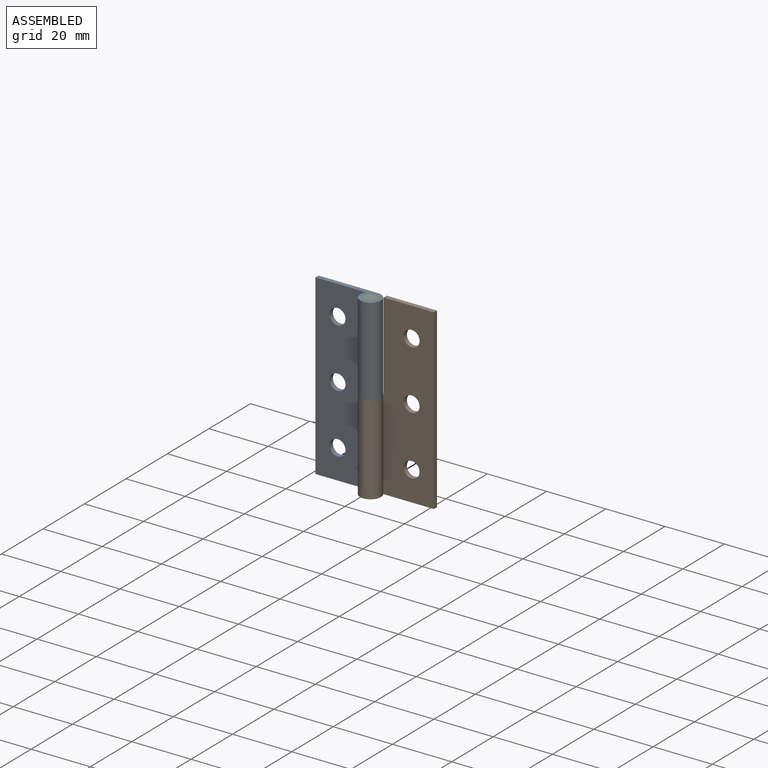
[diagram: assembled view]
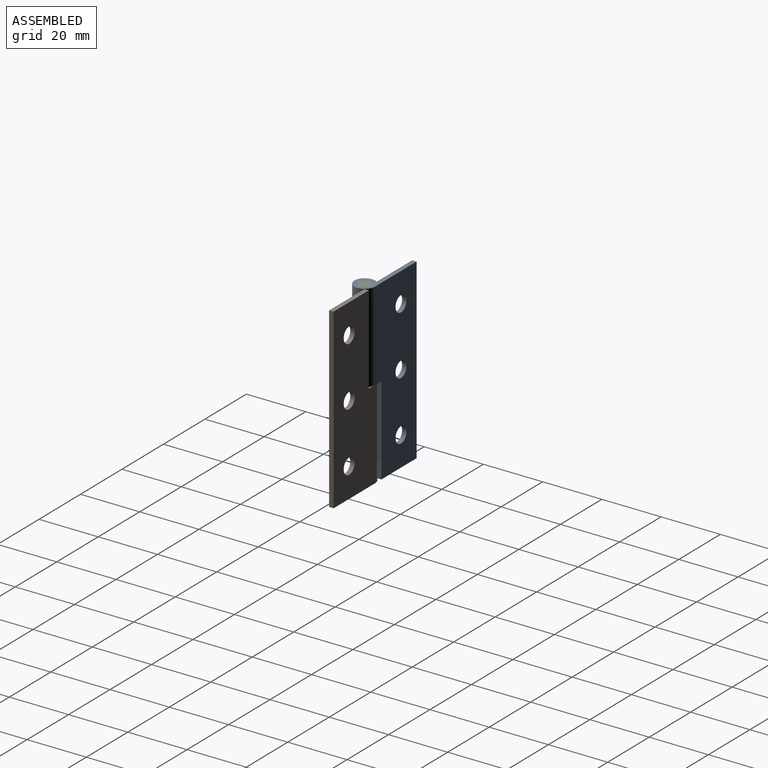
[diagram: assembled view, second angle]
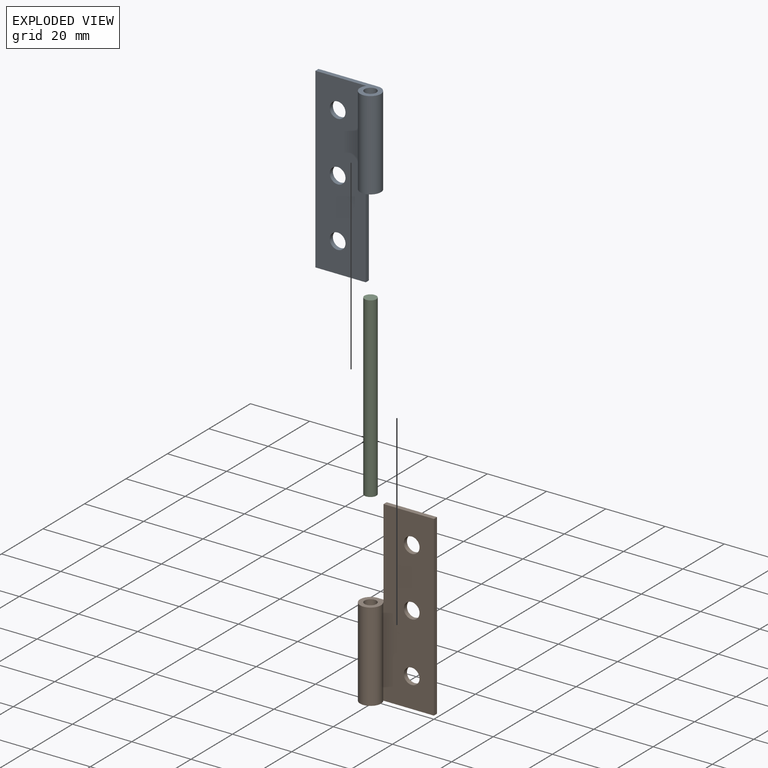
[diagram: exploded view]
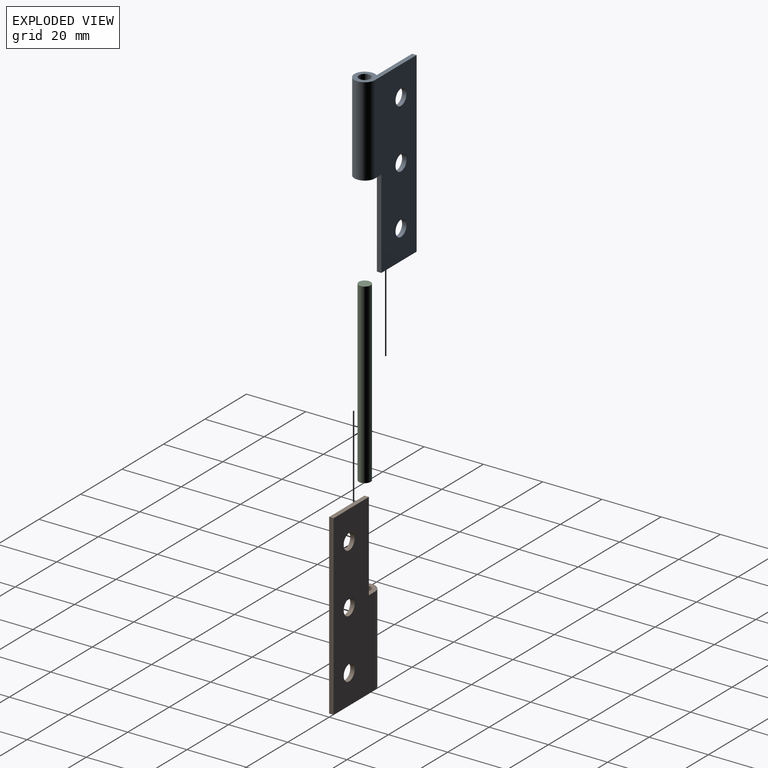
[diagram: exploded view, second angle]
ASSEMBLY  parts=3 mates=2
PART A: 12 faces, bbox 23.5x7x60 mm
  f0: plane 60x17.13mm, normal (0,-1,0), area 957.6mm2, adj f1,f2,f3,f4,f5,f6,f7,f8
  f1: plane 23.5x7mm, normal (0,0,1), area 52.9mm2, adj f0,f2,f9,f10,f11
  f2: plane 60x1.5mm, normal (-1,0,0), area 90mm2, adj f0,f1,f3,f9
  f3: plane 17x1.5mm, normal (0,0,-1), area 25.5mm2, adj f0,f2,f4,f9
  f4: plane 30x1.5mm, normal (1,0,0), area 45mm2, adj f0,f3,f5,f9
  f5: plane 7x7mm, normal (0,0,-1), area 27.4mm2, adj f0,f4,f9,f10,f11
  f6: cylinder r=2.65mm len=5.3mm, axis (0,1,0), area 25mm2, adj f0,f9
  f7: cylinder r=2.65mm len=5.3mm, axis (0,1,0), area 25mm2, adj f0,f9
  f8: cylinder r=2.65mm len=5.3mm, axis (0,1,0), area 25mm2, adj f0,f9
  f9: plane 60x20mm, normal (0,1,0), area 1043.8mm2, adj f1,f2,f3,f4,f5,f6,f7,f8
  f10: cylinder r=3.5mm len=30mm, axis (0,0,-1), area 558.7mm2, adj f0,f1,f5,f9
  f11: cylinder r=2mm len=30mm, axis (0,0,-1), area 377mm2, adj f1,f5
PART B: 12 faces, bbox 23.5x7x60 mm
  f0: plane 60x17.13mm, normal (0,-1,0), area 957.6mm2, adj f1,f2,f3,f4,f5,f6,f7,f8
  f1: plane 23.5x7mm, normal (0,0,-1), area 52.9mm2, adj f0,f2,f9,f10,f11
  f2: plane 60x1.5mm, normal (1,0,0), area 90mm2, adj f0,f1,f3,f9
  f3: plane 17x1.5mm, normal (0,0,1), area 25.5mm2, adj f0,f2,f4,f9
  f4: plane 30x1.5mm, normal (-1,0,0), area 45mm2, adj f0,f3,f8,f9
  f5: cylinder r=2.65mm len=5.3mm, axis (0,1,0), area 25mm2, adj f0,f9
  f6: cylinder r=2.65mm len=5.3mm, axis (0,1,0), area 25mm2, adj f0,f9
  f7: cylinder r=2.65mm len=5.3mm, axis (0,1,0), area 25mm2, adj f0,f9
  f8: plane 7x7mm, normal (0,0,1), area 27.4mm2, adj f0,f4,f9,f10,f11
  f9: plane 60x20mm, normal (0,1,0), area 1043.8mm2, adj f1,f2,f3,f4,f5,f6,f7,f8
  f10: cylinder r=3.5mm len=30mm, axis (0,0,-1), area 558.7mm2, adj f0,f1,f8,f9
  f11: cylinder r=2mm len=30mm, axis (0,0,-1), area 377mm2, adj f1,f8
PART C: 3 faces, bbox 4x4x60 mm
  f0: cylinder r=2mm len=60mm, axis (0,0,-1), area 754mm2, adj f1,f2
  f1: plane 4x4mm, normal (0,0,1), area 12.6mm2, adj f0
  f2: plane 4x4mm, normal (0,0,-1), area 12.6mm2, adj f0
PLACE A t=(0,1.5,0)mm fixed
PLACE B rot(axis=(0,0,1),0deg) t=(0,1.5,0)mm
PLACE C rot(axis=(0,0,-1),0deg) t=(0,1.5,0)mm
MATE revolute A.f10 <-> C.f0  axis (0,0,1) through (20,-2,60)mm
MATE fastened C.f0 <-> B.f10  axis (0,0,-1) through (20,-2,30)mm
